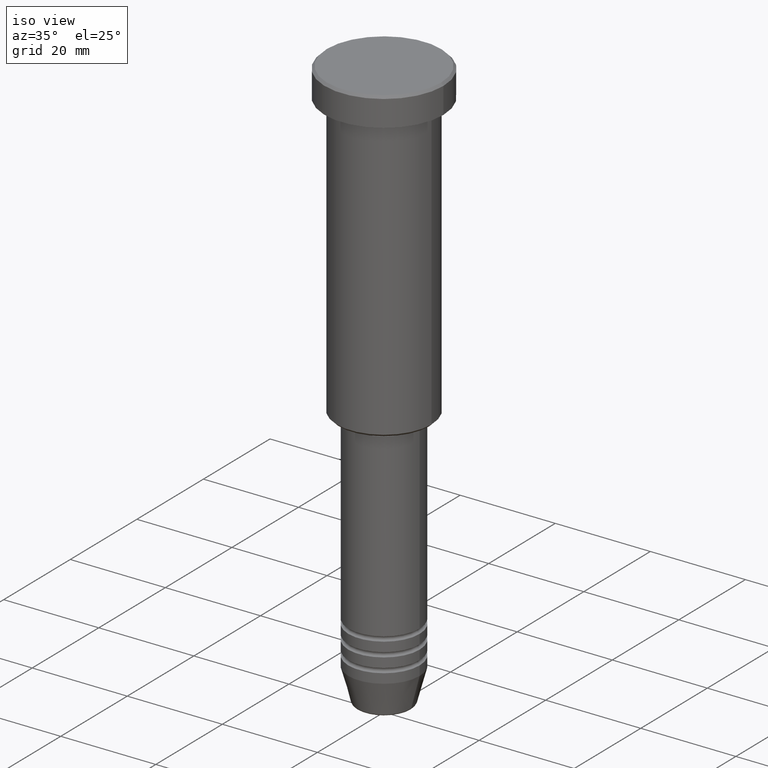
[diagram: clean part render]
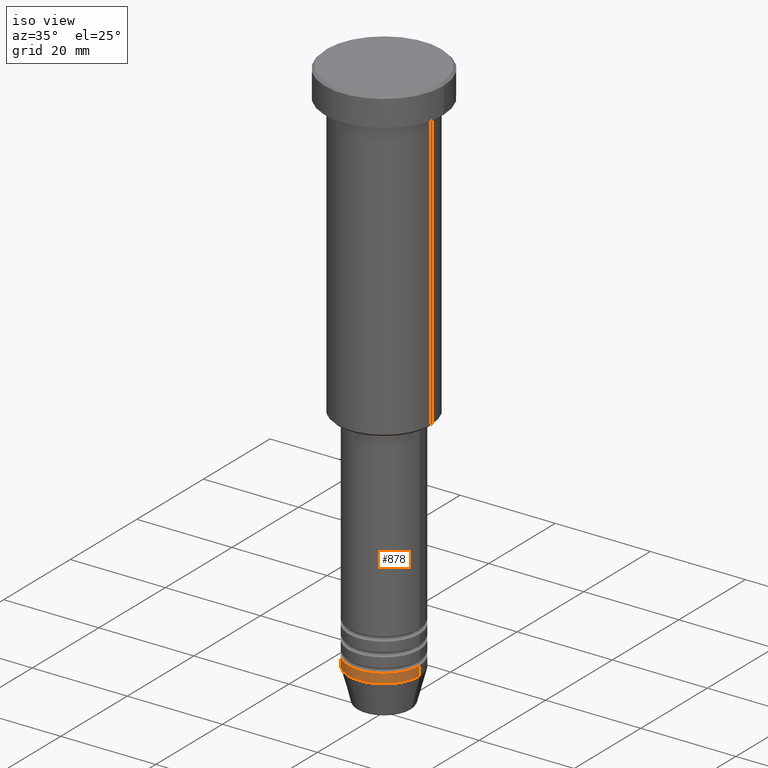
[diagram: same view with one face highlighted and labeled with its STEP entity id]
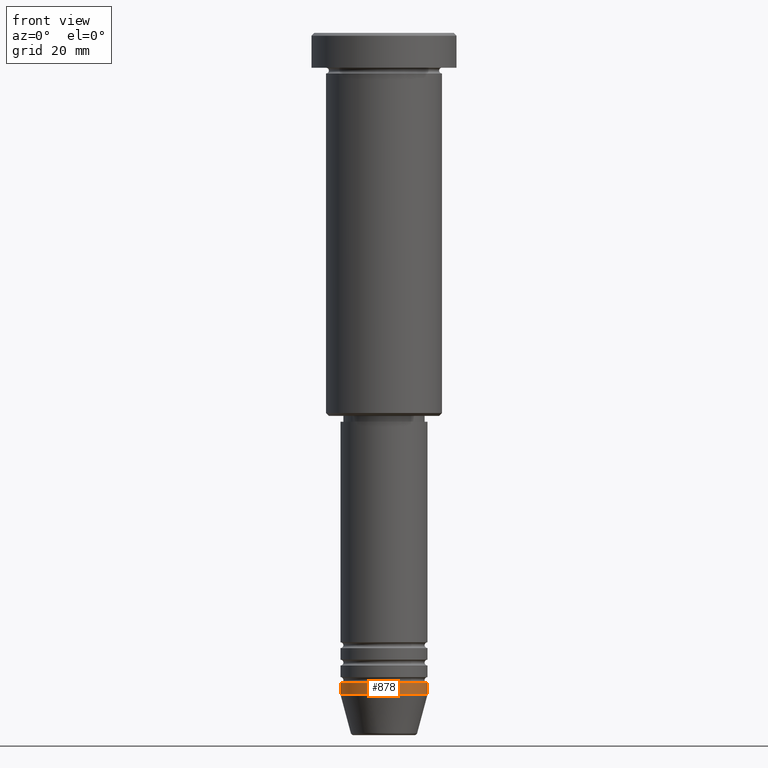
[diagram: same view with one face highlighted and labeled with its STEP entity id]
A machine part, iso view. The second image highlights one B-rep face of the part: STEP entity #878.
A second angle (front view) of the same face is appended — the face is thin or edge-on in the first view.
In plain terms, the highlighted cylindrical surface (partial cylindrical patch) has radius 7.5 mm, axis along (-0, -0, 1).
Its self-contained STEP definition (entity closure, byte-faithful):
#18 = FACE_OUTER_BOUND ( 'NONE', #514, .T. ) ;
#35 = CARTESIAN_POINT ( 'NONE',  ( 0.000000000000000000, 0.000000000000000000, -112.0000000000000142 ) ) ;
#39 = CARTESIAN_POINT ( 'NONE',  ( 0.000000000000000000, 0.000000000000000000, -114.0000000000000142 ) ) ;
#48 = EDGE_CURVE ( 'NONE', #798, #397, #637, .T. ) ;
#52 = DIRECTION ( 'NONE',  ( 1.000000000000000000, 0.000000000000000000, 0.000000000000000000 ) ) ;
#136 = DIRECTION ( 'NONE',  ( -0.000000000000000000, -0.000000000000000000, 1.000000000000000000 ) ) ;
#172 = CYLINDRICAL_SURFACE ( 'NONE', #219, 7.500000000000000000 ) ;
#208 = DIRECTION ( 'NONE',  ( 1.000000000000000000, 0.000000000000000000, 0.000000000000000000 ) ) ;
#217 = AXIS2_PLACEMENT_3D ( 'NONE', #35, #136, #208 ) ;
#219 = AXIS2_PLACEMENT_3D ( 'NONE', #736, #383, #914 ) ;
#292 = ORIENTED_EDGE ( 'NONE', *, *, #635, .F. ) ;
#326 = CARTESIAN_POINT ( 'NONE',  ( -7.500000000000000000, 9.184850993605147944E-16, -112.0000000000000142 ) ) ;
#383 = DIRECTION ( 'NONE',  ( -0.000000000000000000, -0.000000000000000000, 1.000000000000000000 ) ) ;
#389 = CARTESIAN_POINT ( 'NONE',  ( -7.500000000000000000, 9.184850993605147944E-16, 0.000000000000000000 ) ) ;
#394 = AXIS2_PLACEMENT_3D ( 'NONE', #39, #395, #52 ) ;
#395 = DIRECTION ( 'NONE',  ( -0.000000000000000000, -0.000000000000000000, 1.000000000000000000 ) ) ;
#397 = VERTEX_POINT ( 'NONE', #1106 ) ;
#420 = CARTESIAN_POINT ( 'NONE',  ( 7.500000000000000000, 0.000000000000000000, -114.0000000000000142 ) ) ;
#465 = CIRCLE ( 'NONE', #217, 7.500000000000000000 ) ;
#467 = DIRECTION ( 'NONE',  ( -0.000000000000000000, -0.000000000000000000, 1.000000000000000000 ) ) ;
#480 = EDGE_CURVE ( 'NONE', #531, #1162, #730, .T. ) ;
#487 = ORIENTED_EDGE ( 'NONE', *, *, #612, .T. ) ;
#500 = ORIENTED_EDGE ( 'NONE', *, *, #48, .T. ) ;
#514 = EDGE_LOOP ( 'NONE', ( #803, #487, #500, #292 ) ) ;
#531 = VERTEX_POINT ( 'NONE', #1140 ) ;
#612 = EDGE_CURVE ( 'NONE', #531, #798, #946, .T. ) ;
#635 = EDGE_CURVE ( 'NONE', #1162, #397, #465, .T. ) ;
#637 = LINE ( 'NONE', #923, #782 ) ;
#654 = VECTOR ( 'NONE', #916, 1000.000000000000000 ) ;
#730 = LINE ( 'NONE', #389, #654 ) ;
#736 = CARTESIAN_POINT ( 'NONE',  ( 0.000000000000000000, 0.000000000000000000, 0.000000000000000000 ) ) ;
#782 = VECTOR ( 'NONE', #467, 1000.000000000000000 ) ;
#798 = VERTEX_POINT ( 'NONE', #420 ) ;
#803 = ORIENTED_EDGE ( 'NONE', *, *, #480, .F. ) ;
#878 = ADVANCED_FACE ( 'NONE', ( #18 ), #172, .T. ) ;
#914 = DIRECTION ( 'NONE',  ( 1.000000000000000000, 0.000000000000000000, 0.000000000000000000 ) ) ;
#916 = DIRECTION ( 'NONE',  ( -0.000000000000000000, -0.000000000000000000, 1.000000000000000000 ) ) ;
#923 = CARTESIAN_POINT ( 'NONE',  ( 7.500000000000000000, 0.000000000000000000, 0.000000000000000000 ) ) ;
#946 = CIRCLE ( 'NONE', #394, 7.500000000000000000 ) ;
#1106 = CARTESIAN_POINT ( 'NONE',  ( 7.500000000000000000, 0.000000000000000000, -112.0000000000000142 ) ) ;
#1140 = CARTESIAN_POINT ( 'NONE',  ( -7.500000000000000000, 9.184850993605147944E-16, -114.0000000000000142 ) ) ;
#1162 = VERTEX_POINT ( 'NONE', #326 ) ;